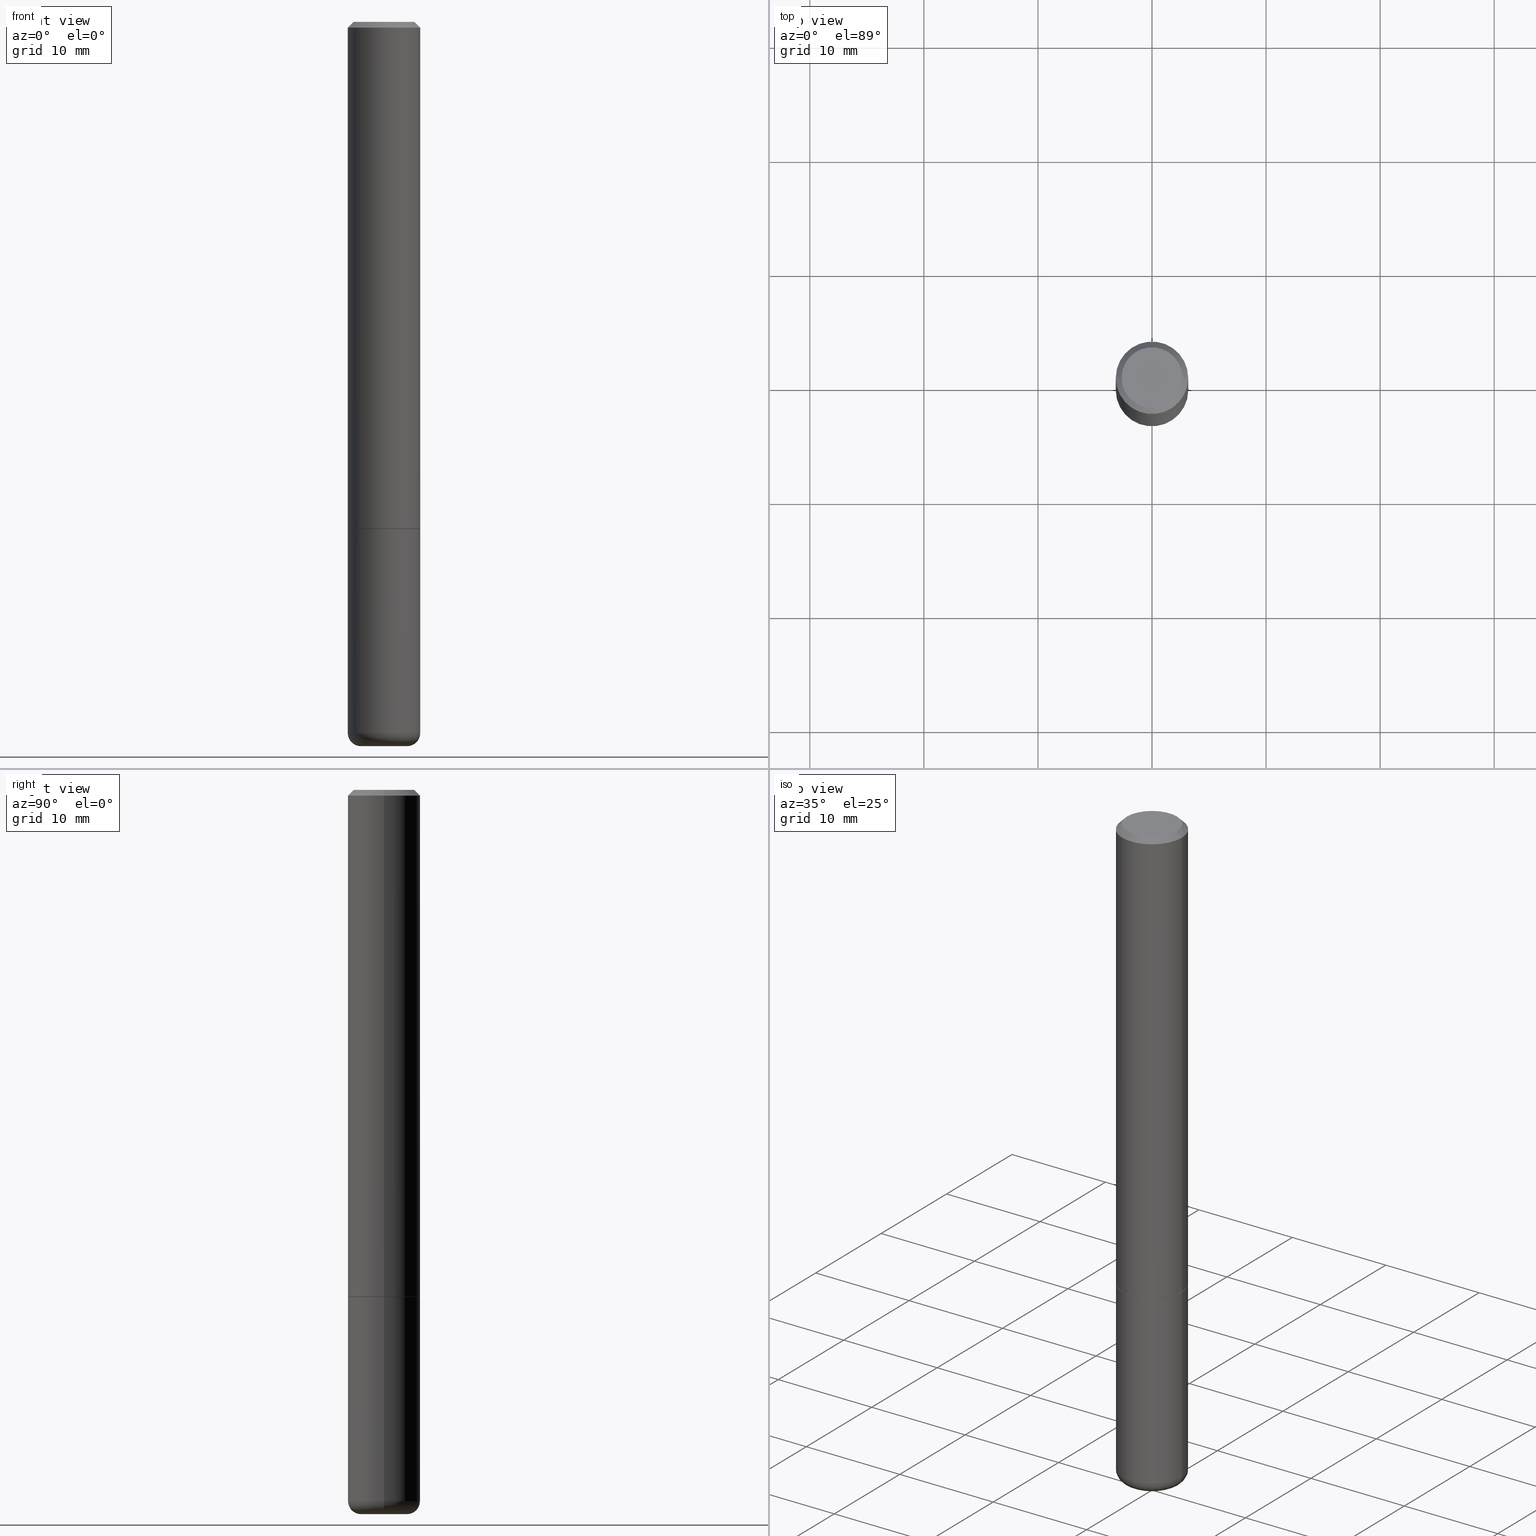
[diagram: canonical four-view strip — front | top / right | iso, engineering-drawing reading convention]
A machine part, canonical four-view strip (front | top / right | iso — engineering-drawing reading convention). The complete STEP part file that produces these views, byte-faithful:
ISO-10303-21;
HEADER;
FILE_DESCRIPTION (( 'STEP AP203' ),
    '1' );
FILE_NAME ('38025.STEP',
    '2023-03-22T20:14:05',
    ( '' ),
    ( '' ),
    'SwSTEP 2.0',
    'SolidWorks 2022',
    '' );
FILE_SCHEMA (( 'CONFIG_CONTROL_DESIGN' ));
ENDSEC;

DATA;
#1 = VERTEX_POINT ( 'NONE', #296 ) ;
#2 = DIRECTION ( 'NONE',  ( 2.445468806185136597E-29, -3.491481338843145583E-15, -1.000000000000000000 ) ) ;
#3 = VERTEX_POINT ( 'NONE', #407 ) ;
#4 = PERSON_AND_ORGANIZATION ( #394, #82 ) ;
#5 = CC_DESIGN_DATE_AND_TIME_ASSIGNMENT ( #27, #203, ( #205 ) ) ;
#6 = EDGE_CURVE ( 'NONE', #318, #110, #44, .T. ) ;
#7 = CARTESIAN_POINT ( 'NONE',  ( 6.113672015462842613E-29, -8.728703347107864943E-15, -2.500000000000000000 ) ) ;
#8 = DIRECTION ( 'NONE',  ( 0.000000000000000000, 0.000000000000000000, 1.000000000000000000 ) ) ;
#9 = ORIENTED_EDGE ( 'NONE', *, *, #138, .F. ) ;
#10 = PERSON_AND_ORGANIZATION ( #394, #82 ) ;
#11 = CIRCLE ( 'NONE', #263, 0.1049999999999998157 ) ;
#12 = DIRECTION ( 'NONE',  ( 1.000000000000000000, -6.982962677686266711E-15, 4.876206205277402437E-29 ) ) ;
#13 = EDGE_CURVE ( 'NONE', #171, #3, #415, .T. ) ;
#14 = DIRECTION ( 'NONE',  ( -0.9986295347545742773, 6.790662755453672411E-15, -0.05233595624293532755 ) ) ;
#15 = LINE ( 'NONE', #109, #239 ) ;
#16 = ORIENTED_EDGE ( 'NONE', *, *, #347, .T. ) ;
#17 = CARTESIAN_POINT ( 'NONE',  ( 6.104286881592932055E-29, -8.713685342262999607E-15, -2.495930804163307926 ) ) ;
#18 = CARTESIAN_POINT ( 'NONE',  ( 0.000000000000000000, 0.000000000000000000, 0.000000000000000000 ) ) ;
#19 = COORDINATED_UNIVERSAL_TIME_OFFSET ( 5, 0, .BEHIND. ) ;
#20 = ORIENTED_EDGE ( 'NONE', *, *, #47, .T. ) ;
#21 = DIRECTION ( 'NONE',  ( 1.000000000000000000, -6.982962677686270655E-15, 4.883557194083114583E-29 ) ) ;
#22 = AXIS2_PLACEMENT_3D ( 'NONE', #144, #77, #107 ) ;
#23 = CARTESIAN_POINT ( 'NONE',  ( 6.003776733534854503E-29, -8.571802009782270255E-15, -2.455061670936044216 ) ) ;
#24 = CALENDAR_DATE ( 2023, 22, 3 ) ;
#25 = CIRCLE ( 'NONE', #346, 0.04499999999999999833 ) ;
#26 = CARTESIAN_POINT ( 'NONE',  ( 4.279570410823989044E-29, -6.110092342975505460E-15, -1.750000000000000222 ) ) ;
#27 = DATE_AND_TIME ( #161, #126 ) ;
#28 = ORIENTED_EDGE ( 'NONE', *, *, #390, .F. ) ;
#29 = ADVANCED_FACE ( 'NONE', ( #374 ), #199, .F. ) ;
#30 = CARTESIAN_POINT ( 'NONE',  ( 1.023820203800856920E-27, -1.461743910558250690E-13, -41.86600954432078936 ) ) ;
#31 = PERSON_AND_ORGANIZATION_ROLE ( 'classification_officer' ) ;
#32 =( GEOMETRIC_REPRESENTATION_CONTEXT ( 3 ) GLOBAL_UNCERTAINTY_ASSIGNED_CONTEXT ( ( #192 ) ) GLOBAL_UNIT_ASSIGNED_CONTEXT ( ( #362, #316, #225 ) ) REPRESENTATION_CONTEXT ( 'NONE', 'WORKASPACE' ) );
#33 = EDGE_LOOP ( 'NONE', ( #131, #145, #86, #133 ) ) ;
#34 = DIRECTION ( 'NONE',  ( 0.9986295347545742773, -7.033825938271993967E-15, -0.05233595624293532755 ) ) ;
#35 = ORIENTED_EDGE ( 'NONE', *, *, #72, .T. ) ;
#36 = AXIS2_PLACEMENT_3D ( 'NONE', #230, #65, #268 ) ;
#37 = AXIS2_PLACEMENT_3D ( 'NONE', #90, #287, #385 ) ;
#38 = CIRCLE ( 'NONE', #37, 0.1049999999999998157 ) ;
#39 = EDGE_CURVE ( 'NONE', #40, #1, #262, .T. ) ;
#40 = VERTEX_POINT ( 'NONE', #63 ) ;
#41 = DATE_AND_TIME ( #334, #46 ) ;
#42 = LINE ( 'NONE', #303, #130 ) ;
#43 = DIRECTION ( 'NONE',  ( -2.445468806185136597E-29, 3.491481338843145583E-15, 1.000000000000000000 ) ) ;
#44 = CIRCLE ( 'NONE', #36, 0.1250000000000000000 ) ;
#45 = CARTESIAN_POINT ( 'NONE',  ( -0.07764488196906783879, -7.930313434334646559E-15, -2.500000000000000000 ) ) ;
#46 = LOCAL_TIME ( 16, 14, 5.000000000000000000, #190 ) ;
#47 = EDGE_CURVE ( 'NONE', #344, #318, #172, .T. ) ;
#48 = CONICAL_SURFACE ( 'NONE', #97, 0.1249999999999997780, 0.7853981633974469467 ) ;
#49 = FACE_OUTER_BOUND ( 'NONE', #295, .T. ) ;
#50 = DIRECTION ( 'NONE',  ( -2.445468806185136597E-29, 3.491481338843145583E-15, 1.000000000000000000 ) ) ;
#51 = DATE_AND_TIME ( #353, #348 ) ;
#52 = ORIENTED_EDGE ( 'NONE', *, *, #310, .F. ) ;
#53 = CARTESIAN_POINT ( 'NONE',  ( 4.890937612370274910E-31, -6.982962677686295307E-17, -0.02000000000000000736 ) ) ;
#54 = ORIENTED_EDGE ( 'NONE', *, *, #6, .T. ) ;
#55 = MECHANICAL_CONTEXT ( 'NONE', #218, 'mechanical' ) ;
#56 = ORIENTED_EDGE ( 'NONE', *, *, #13, .F. ) ;
#57 = CIRCLE ( 'NONE', #314, 0.1250000000000000000 ) ;
#58 = DIRECTION ( 'NONE',  ( -1.000000000000000000, 6.982962677686266711E-15, 0.000000000000000000 ) ) ;
#59 = FACE_OUTER_BOUND ( 'NONE', #94, .T. ) ;
#60 = COORDINATED_UNIVERSAL_TIME_OFFSET ( 5, 0, .BEHIND. ) ;
#61 = ORIENTED_EDGE ( 'NONE', *, *, #305, .F. ) ;
#62 = CARTESIAN_POINT ( 'NONE',  ( 0.1239999999999999991, -6.975979715008602784E-15, -1.750000000000000222 ) ) ;
#63 = CARTESIAN_POINT ( 'NONE',  ( 0.1250000000000000000, -6.979471196347443425E-15, -1.748999999999999888 ) ) ;
#64 = DIRECTION ( 'NONE',  ( -2.445468806185136597E-29, 3.491481338843145583E-15, 1.000000000000000000 ) ) ;
#65 = DIRECTION ( 'NONE',  ( -2.445468806185136597E-29, 3.491481338843145583E-15, 1.000000000000000000 ) ) ;
#66 = DIRECTION ( 'NONE',  ( 7.105427357601001859E-15, 1.000000000000000000, -3.491481338843145583E-15 ) ) ;
#67 = EDGE_CURVE ( 'NONE', #357, #344, #57, .T. ) ;
#68 = PERSON_AND_ORGANIZATION_ROLE ( 'creator' ) ;
#69 = VECTOR ( 'NONE', #269, 39.37007874015748143 ) ;
#70 = SECURITY_CLASSIFICATION_LEVEL ( 'unclassified' ) ;
#71 = DIRECTION ( 'NONE',  ( -1.000000000000000000, 6.982962677686266711E-15, 0.000000000000000000 ) ) ;
#72 = EDGE_CURVE ( 'NONE', #213, #40, #382, .T. ) ;
#73 = CLOSED_SHELL ( 'NONE', ( #276, #141, #369, #264, #327, #81, #340, #351 ) ) ;
#74 = CONICAL_SURFACE ( 'NONE', #178, 0.1249999999999997780, 0.7853981633974469467 ) ;
#75 = EDGE_CURVE ( 'NONE', #313, #132, #42, .T. ) ;
#76 = VERTEX_POINT ( 'NONE', #409 ) ;
#77 = DIRECTION ( 'NONE',  ( -2.445468806185136597E-29, 3.491481338843145583E-15, 1.000000000000000000 ) ) ;
#78 = ORIENTED_EDGE ( 'NONE', *, *, #67, .T. ) ;
#79 = ADVANCED_FACE ( 'NONE', ( #336 ), #91, .F. ) ;
#80 = FACE_OUTER_BOUND ( 'NONE', #408, .T. ) ;
#81 = ADVANCED_FACE ( 'NONE', ( #275 ), #185, .T. ) ;
#82 = ORGANIZATION ( 'UNSPECIFIED', 'UNSPECIFIED', '' ) ;
#83 = DIRECTION ( 'NONE',  ( -2.445468806185136877E-29, 3.491481338843145188E-15, 1.000000000000000000 ) ) ;
#84 = DIRECTION ( 'NONE',  ( 1.000000000000000000, -6.982962677686266711E-15, 4.876176775795935793E-29 ) ) ;
#85 = AXIS2_PLACEMENT_3D ( 'NONE', #99, #206, #345 ) ;
#86 = ORIENTED_EDGE ( 'NONE', *, *, #375, .T. ) ;
#87 = DIRECTION ( 'NONE',  ( 0.7071067811864267805, -2.468850131080992517E-15, 0.7071067811866682540 ) ) ;
#88 = DIRECTION ( 'NONE',  ( 2.445468806185136597E-29, -3.491481338843145583E-15, -1.000000000000000000 ) ) ;
#89 = ADVANCED_BREP_SHAPE_REPRESENTATION ( '38025', ( #258, #105, #399 ), #32 ) ;
#90 = CARTESIAN_POINT ( 'NONE',  ( -1.043851414335219820E-46, 1.490343170380447200E-32, 4.268512490100411279E-18 ) ) ;
#91 = CONICAL_SURFACE ( 'NONE', #177, 751.2258538476899048, 1.518436449235075258 ) ;
#92 = CARTESIAN_POINT ( 'NONE',  ( 0.1250000000000000000, -6.982962677686288010E-15, -1.750000000000000222 ) ) ;
#93 = CYLINDRICAL_SURFACE ( 'NONE', #238, 0.1250000000000000000 ) ;
#94 = EDGE_LOOP ( 'NONE', ( #322, #247, #184, #424 ) ) ;
#95 = ORIENTED_EDGE ( 'NONE', *, *, #301, .F. ) ;
#96 = CIRCLE ( 'NONE', #22, 0.1250000000000000000 ) ;
#97 = AXIS2_PLACEMENT_3D ( 'NONE', #437, #122, #58 ) ;
#98 = DIRECTION ( 'NONE',  ( -2.445468806185136597E-29, 3.491481338843145583E-15, 1.000000000000000000 ) ) ;
#99 = CARTESIAN_POINT ( 'NONE',  ( 4.279570410823989044E-29, -6.110092342975505460E-15, -1.750000000000000222 ) ) ;
#100 = VECTOR ( 'NONE', #14, 39.37007874015748854 ) ;
#101 = AXIS2_PLACEMENT_3D ( 'NONE', #363, #147, #121 ) ;
#102 = LINE ( 'NONE', #228, #433 ) ;
#103 = CC_DESIGN_APPROVAL ( #367, ( #205 ) ) ;
#104 = DIRECTION ( 'NONE',  ( -2.445468806185136597E-29, 3.491481338843145583E-15, 1.000000000000000000 ) ) ;
#105 = MANIFOLD_SOLID_BREP ( 'Body-Move/Copy2[2]', #73 ) ;
#106 = VECTOR ( 'NONE', #332, 39.37007874015748143 ) ;
#107 = DIRECTION ( 'NONE',  ( 1.000000000000000000, -6.982962677686270655E-15, 0.000000000000000000 ) ) ;
#108 = EDGE_CURVE ( 'NONE', #76, #357, #25, .T. ) ;
#109 = CARTESIAN_POINT ( 'NONE',  ( 0.1249999999999997780, -9.273918764983027713E-16, -0.02000000000000000736 ) ) ;
#110 = VERTEX_POINT ( 'NONE', #92 ) ;
#111 = DIRECTION ( 'NONE',  ( -2.445468806185136597E-29, 3.491481338843145583E-15, 1.000000000000000000 ) ) ;
#112 = PERSON_AND_ORGANIZATION ( #394, #82 ) ;
#113 = ORIENTED_EDGE ( 'NONE', *, *, #13, .T. ) ;
#114 = CARTESIAN_POINT ( 'NONE',  ( 0.000000000000000000, 0.000000000000000000, 0.000000000000000000 ) ) ;
#115 = EDGE_CURVE ( 'NONE', #297, #76, #102, .T. ) ;
#116 = ORIENTED_EDGE ( 'NONE', *, *, #273, .F. ) ;
#117 = DIRECTION ( 'NONE',  ( 1.000000000000000000, -6.982962677686266711E-15, 0.000000000000000000 ) ) ;
#118 = ORIENTED_EDGE ( 'NONE', *, *, #412, .T. ) ;
#119 = AXIS2_PLACEMENT_3D ( 'NONE', #300, #66, #417 ) ;
#120 =( LENGTH_UNIT ( ) NAMED_UNIT ( * ) SI_UNIT ( $, .METRE. ) );
#121 = DIRECTION ( 'NONE',  ( 1.000000000000000000, -6.982962677686266711E-15, 4.876176775795935793E-29 ) ) ;
#122 = DIRECTION ( 'NONE',  ( 2.445468806185136597E-29, -3.491481338843145583E-15, -1.000000000000000000 ) ) ;
#123 = EDGE_LOOP ( 'NONE', ( #290, #288, #179, #392 ) ) ;
#124 = CARTESIAN_POINT ( 'NONE',  ( 0.000000000000000000, 0.000000000000000000, 0.000000000000000000 ) ) ;
#125 = PRODUCT_DEFINITION_SHAPE ( 'NONE', 'NONE',  #153 ) ;
#126 = LOCAL_TIME ( 16, 14, 5.000000000000000000, #370 ) ;
#127 = PERSON_AND_ORGANIZATION ( #394, #82 ) ;
#128 = DIRECTION ( 'NONE',  ( -1.000000000000000000, 6.982962677686265922E-15, -4.876176775795935793E-29 ) ) ;
#129 = CARTESIAN_POINT ( 'NONE',  ( 4.279570410823989044E-29, -6.110092342975505460E-15, -1.750000000000000222 ) ) ;
#130 = VECTOR ( 'NONE', #194, 39.37007874015748143 ) ;
#131 = ORIENTED_EDGE ( 'NONE', *, *, #389, .F. ) ;
#132 = VERTEX_POINT ( 'NONE', #160 ) ;
#133 = ORIENTED_EDGE ( 'NONE', *, *, #75, .F. ) ;
#134 = EDGE_CURVE ( 'NONE', #252, #344, #143, .T. ) ;
#135 = AXIS2_PLACEMENT_3D ( 'NONE', #413, #438, #128 ) ;
#136 = CARTESIAN_POINT ( 'NONE',  ( -0.1250000000000000278, -2.200036824506634093E-15, -1.748999999999999888 ) ) ;
#137 = VECTOR ( 'NONE', #279, 39.37007874015748143 ) ;
#138 = EDGE_CURVE ( 'NONE', #76, #252, #271, .T. ) ;
#139 = CC_DESIGN_DATE_AND_TIME_ASSIGNMENT ( #154, #294, ( #153 ) ) ;
#140 = CIRCLE ( 'NONE', #349, 0.1239999999999999991 ) ;
#141 = ADVANCED_FACE ( 'NONE', ( #379 ), #209, .T. ) ;
#142 = LINE ( 'NONE', #244, #372 ) ;
#143 = CIRCLE ( 'NONE', #119, 0.04499999999999999833 ) ;
#144 = CARTESIAN_POINT ( 'NONE',  ( 6.003776733534854503E-29, -8.571802009782270255E-15, -2.455061670936044216 ) ) ;
#145 = ORIENTED_EDGE ( 'NONE', *, *, #310, .T. ) ;
#146 = DIRECTION ( 'NONE',  ( 2.438088387897960049E-29, -3.491481338843145188E-15, -1.000000000000000000 ) ) ;
#147 = DIRECTION ( 'NONE',  ( -2.445468806185136597E-29, 3.491481338843145583E-15, 1.000000000000000000 ) ) ;
#148 = DIRECTION ( 'NONE',  ( 2.445468806185136597E-29, -3.491481338843145583E-15, -1.000000000000000000 ) ) ;
#149 = CARTESIAN_POINT ( 'NONE',  ( -0.1049999999999998157, 7.681258945454877999E-16, 4.268512490095161194E-18 ) ) ;
#150 = EDGE_CURVE ( 'NONE', #252, #76, #309, .T. ) ;
#151 = APPROVAL_DATE_TIME ( #51, #266 ) ;
#152 = EDGE_LOOP ( 'NONE', ( #28, #193, #358 ) ) ;
#153 = PRODUCT_DEFINITION ( 'UNKNOWN', '', #307, #439 ) ;
#154 = DATE_AND_TIME ( #24, #411 ) ;
#155 = DIRECTION ( 'NONE',  ( 1.000000000000000000, -6.982962677686265922E-15, 4.876176775795935793E-29 ) ) ;
#156 = EDGE_LOOP ( 'NONE', ( #167, #430, #9 ) ) ;
#157 = ORIENTED_EDGE ( 'NONE', *, *, #273, .T. ) ;
#158 = CARTESIAN_POINT ( 'NONE',  ( -1.043851414335219820E-46, 1.490343170380447200E-32, 4.268512490100411279E-18 ) ) ;
#159 = FACE_OUTER_BOUND ( 'NONE', #285, .T. ) ;
#160 = CARTESIAN_POINT ( 'NONE',  ( -0.1249999999999997780, 8.030407079339188573E-16, -0.02000000000000000736 ) ) ;
#161 = CALENDAR_DATE ( 2023, 22, 3 ) ;
#162 = EDGE_LOOP ( 'NONE', ( #78, #20, #216, #329 ) ) ;
#163 = CIRCLE ( 'NONE', #418, 0.1249999999999997780 ) ;
#164 = CIRCLE ( 'NONE', #422, 0.1249999999999997780 ) ;
#165 = SHAPE_DEFINITION_REPRESENTATION ( #125, #89 ) ;
#166 = DIRECTION ( 'NONE',  ( 1.000000000000000000, -6.982962677686270655E-15, 0.000000000000000000 ) ) ;
#167 = ORIENTED_EDGE ( 'NONE', *, *, #115, .F. ) ;
#168 = CARTESIAN_POINT ( 'NONE',  ( 0.08000000000000000167, -9.130439023997171907E-15, -2.455061670936044216 ) ) ;
#169 = EDGE_LOOP ( 'NONE', ( #52, #240, #245, #306 ) ) ;
#170 = CONICAL_SURFACE ( 'NONE', #333, 0.1239999999999999991, 0.7853981633972775267 ) ;
#171 = VERTEX_POINT ( 'NONE', #254 ) ;
#172 = LINE ( 'NONE', #235, #69 ) ;
#173 = CIRCLE ( 'NONE', #85, 0.1250000000000000000 ) ;
#174 = PLANE ( 'NONE',  #234 ) ;
#175 = PRODUCT ( '38025', '38025', '', ( #55 ) ) ;
#176 = APPLICATION_CONTEXT ( 'configuration controlled 3d designs of mechanical parts and assemblies' ) ;
#177 = AXIS2_PLACEMENT_3D ( 'NONE', #231, #2, #71 ) ;
#178 = AXIS2_PLACEMENT_3D ( 'NONE', #330, #148, #359 ) ;
#179 = ORIENTED_EDGE ( 'NONE', *, *, #108, .T. ) ;
#180 = CC_DESIGN_PERSON_AND_ORGANIZATION_ASSIGNMENT ( #321, #292, ( #153 ) ) ;
#181 = DIRECTION ( 'NONE',  ( 1.000000000000000000, 0.000000000000000000, 0.000000000000000000 ) ) ;
#182 = CC_DESIGN_APPROVAL ( #266, ( #153 ) ) ;
#183 = APPROVAL_STATUS ( 'not_yet_approved' ) ;
#184 = ORIENTED_EDGE ( 'NONE', *, *, #67, .F. ) ;
#185 = CONICAL_SURFACE ( 'NONE', #233, 0.1239999999999999991, 0.7853981633972775267 ) ;
#186 = TOROIDAL_SURFACE ( 'NONE', #405, 0.08000000000000000167, 0.04499999999999999140 ) ;
#187 = APPROVAL_DATE_TIME ( #41, #367 ) ;
#188 = FACE_OUTER_BOUND ( 'NONE', #260, .T. ) ;
#189 = ORIENTED_EDGE ( 'NONE', *, *, #72, .F. ) ;
#190 = COORDINATED_UNIVERSAL_TIME_OFFSET ( 5, 0, .BEHIND. ) ;
#191 = DIRECTION ( 'NONE',  ( -2.445468806185136597E-29, 3.491481338843145583E-15, 1.000000000000000000 ) ) ;
#192 = UNCERTAINTY_MEASURE_WITH_UNIT (LENGTH_MEASURE( 1.000000000000000082E-05 ), #362, 'distance_accuracy_value', 'NONE');
#193 = ORIENTED_EDGE ( 'NONE', *, *, #115, .T. ) ;
#194 = DIRECTION ( 'NONE',  ( -0.7071067811865465735, 2.468850131082246805E-15, -0.7071067811865484609 ) ) ;
#195 = DIRECTION ( 'NONE',  ( 1.000000000000000000, -6.982962677686266711E-15, 4.876176775795935793E-29 ) ) ;
#196 = DATE_AND_TIME ( #410, #278 ) ;
#197 = DIRECTION ( 'NONE',  ( -2.445468806185136877E-29, 3.491481338843145188E-15, 1.000000000000000000 ) ) ;
#198 = PERSON_AND_ORGANIZATION ( #394, #82 ) ;
#199 = PLANE ( 'NONE',  #135 ) ;
#200 = ADVANCED_FACE ( 'NONE', ( #226 ), #442, .F. ) ;
#201 = DIRECTION ( 'NONE',  ( -2.445468806185136597E-29, 3.491481338843145583E-15, 1.000000000000000000 ) ) ;
#202 = CARTESIAN_POINT ( 'NONE',  ( 4.890937612370274910E-31, -6.982962677686295307E-17, -0.02000000000000000736 ) ) ;
#203 = DATE_TIME_ROLE ( 'classification_date' ) ;
#204 = DIRECTION ( 'NONE',  ( -6.982962677686266711E-15, -1.000000000000000000, 3.491481338843145583E-15 ) ) ;
#205 = SECURITY_CLASSIFICATION ( '', '', #70 ) ;
#206 = DIRECTION ( 'NONE',  ( -2.445468806185136597E-29, 3.491481338843145583E-15, 1.000000000000000000 ) ) ;
#207 = AXIS2_PLACEMENT_3D ( 'NONE', #30, #88, #365 ) ;
#208 = ADVANCED_FACE ( 'NONE', ( #59 ), #355, .T. ) ;
#209 = CYLINDRICAL_SURFACE ( 'NONE', #373, 0.1249999999999999029 ) ;
#210 = CC_DESIGN_SECURITY_CLASSIFICATION ( #205, ( #307 ) ) ;
#211 = ADVANCED_FACE ( 'NONE', ( #159 ), #93, .T. ) ;
#212 = DIRECTION ( 'NONE',  ( 1.000000000000000000, -6.982962677686266711E-15, 4.876176775795935793E-29 ) ) ;
#213 = VERTEX_POINT ( 'NONE', #136 ) ;
#214 = CYLINDRICAL_SURFACE ( 'NONE', #434, 0.1250000000000000000 ) ;
#215 = CARTESIAN_POINT ( 'NONE',  ( 7.332110811570567424E-16, 0.1049999999999998157, -3.644712843334794891E-16 ) ) ;
#216 = ORIENTED_EDGE ( 'NONE', *, *, #243, .F. ) ;
#217 = CLOSED_SHELL ( 'NONE', ( #79, #208, #277, #29, #211, #302, #200 ) ) ;
#218 = APPLICATION_CONTEXT ( 'configuration controlled 3d designs of mechanical parts and assemblies' ) ;
#219 = DIRECTION ( 'NONE',  ( 1.000000000000000000, -6.982962677686262766E-15, 0.000000000000000000 ) ) ;
#220 = ORIENTED_EDGE ( 'NONE', *, *, #384, .T. ) ;
#221 = CARTESIAN_POINT ( 'NONE',  ( 0.1250000000000000000, -8.728703347107833388E-16, 6.095220969744919741E-30 ) ) ;
#222 = ORIENTED_EDGE ( 'NONE', *, *, #39, .T. ) ;
#223 = CARTESIAN_POINT ( 'NONE',  ( -0.1239999999999999991, -5.229019350632981236E-15, -1.750000000000000222 ) ) ;
#224 = EDGE_CURVE ( 'NONE', #132, #1, #163, .T. ) ;
#225 =( NAMED_UNIT ( * ) SI_UNIT ( $, .STERADIAN. ) SOLID_ANGLE_UNIT ( ) );
#226 = FACE_OUTER_BOUND ( 'NONE', #156, .T. ) ;
#227 = AXIS2_PLACEMENT_3D ( 'NONE', #397, #98, #219 ) ;
#228 = CARTESIAN_POINT ( 'NONE',  ( 8.104835170173375943E-19, -8.714495825779956901E-15, -2.495930804163307926 ) ) ;
#229 = APPROVAL_PERSON_ORGANIZATION ( #435, #232, #398 ) ;
#230 = CARTESIAN_POINT ( 'NONE',  ( 4.279570410823989044E-29, -6.110092342975505460E-15, -1.750000000000000222 ) ) ;
#231 = CARTESIAN_POINT ( 'NONE',  ( 1.023820203800856920E-27, -1.461743910558250690E-13, -41.86600954432078936 ) ) ;
#232 = APPROVAL ( #259, 'UNSPECIFIED' ) ;
#233 = AXIS2_PLACEMENT_3D ( 'NONE', #414, #339, #166 ) ;
#234 = AXIS2_PLACEMENT_3D ( 'NONE', #215, #146, #354 ) ;
#235 = CARTESIAN_POINT ( 'NONE',  ( -0.1250000000000000000, 8.881784197001252323E-16, -6.148668862818632227E-30 ) ) ;
#236 = APPROVAL_STATUS ( 'not_yet_approved' ) ;
#237 = ORIENTED_EDGE ( 'NONE', *, *, #403, .F. ) ;
#238 = AXIS2_PLACEMENT_3D ( 'NONE', #368, #64, #195 ) ;
#239 = VECTOR ( 'NONE', #356, 39.37007874015748143 ) ;
#240 = ORIENTED_EDGE ( 'NONE', *, *, #347, .F. ) ;
#241 = ORIENTED_EDGE ( 'NONE', *, *, #403, .T. ) ;
#242 = FACE_OUTER_BOUND ( 'NONE', #169, .T. ) ;
#243 = EDGE_CURVE ( 'NONE', #110, #318, #173, .T. ) ;
#244 = CARTESIAN_POINT ( 'NONE',  ( -0.1249999999999999029, 8.881784197001245421E-16, -6.148668862818627323E-30 ) ) ;
#245 = ORIENTED_EDGE ( 'NONE', *, *, #75, .T. ) ;
#246 = DIRECTION ( 'NONE',  ( 1.000000000000000000, -6.982962677686268288E-15, 0.000000000000000000 ) ) ;
#247 = ORIENTED_EDGE ( 'NONE', *, *, #134, .T. ) ;
#248 = PRODUCT_RELATED_PRODUCT_CATEGORY ( 'detail', '', ( #175 ) ) ;
#249 = ORIENTED_EDGE ( 'NONE', *, *, #389, .T. ) ;
#250 = DIRECTION ( 'NONE',  ( -2.445468806185136597E-29, 3.491481338843145583E-15, 1.000000000000000000 ) ) ;
#251 = CARTESIAN_POINT ( 'NONE',  ( -8.104835168952630063E-19, -8.714495825779956901E-15, -2.495930804163307926 ) ) ;
#252 = VERTEX_POINT ( 'NONE', #45 ) ;
#253 = ORIENTED_EDGE ( 'NONE', *, *, #39, .F. ) ;
#254 = CARTESIAN_POINT ( 'NONE',  ( 0.1239999999999999991, -6.975979715008602784E-15, -1.750000000000000222 ) ) ;
#255 = APPLICATION_PROTOCOL_DEFINITION ( 'international standard', 'config_control_design', 1994, #218 ) ;
#256 = EDGE_LOOP ( 'NONE', ( #113, #324, #427, #95 ) ) ;
#257 = DIRECTION ( 'NONE',  ( -2.445468806185136597E-29, 3.491481338843145583E-15, 1.000000000000000000 ) ) ;
#258 = MANIFOLD_SOLID_BREP ( 'Body-Move/Copy2[1]', #217 ) ;
#259 = APPROVAL_STATUS ( 'not_yet_approved' ) ;
#260 = EDGE_LOOP ( 'NONE', ( #56, #116 ) ) ;
#261 = PERSON_AND_ORGANIZATION_ROLE ( 'design_supplier' ) ;
#262 = LINE ( 'NONE', #401, #378 ) ;
#263 = AXIS2_PLACEMENT_3D ( 'NONE', #158, #319, #12 ) ;
#264 = ADVANCED_FACE ( 'NONE', ( #242 ), #48, .T. ) ;
#265 = DIRECTION ( 'NONE',  ( 1.000000000000000000, -6.982962677686270655E-15, 0.000000000000000000 ) ) ;
#266 = APPROVAL ( #183, 'UNSPECIFIED' ) ;
#267 = CARTESIAN_POINT ( 'NONE',  ( 4.277124942017804002E-29, -6.106600861636660875E-15, -1.748999999999999888 ) ) ;
#268 = DIRECTION ( 'NONE',  ( 1.000000000000000000, -6.982962677686262766E-15, 0.000000000000000000 ) ) ;
#269 = DIRECTION ( 'NONE',  ( -2.445468806185136877E-29, 3.491481338843145188E-15, 1.000000000000000000 ) ) ;
#270 = ORIENTED_EDGE ( 'NONE', *, *, #421, .T. ) ;
#271 = CIRCLE ( 'NONE', #402, 0.07764488196906783879 ) ;
#272 = DIRECTION ( 'NONE',  ( -2.445468806185136597E-29, 3.491481338843145583E-15, 1.000000000000000000 ) ) ;
#273 = EDGE_CURVE ( 'NONE', #3, #171, #140, .T. ) ;
#274 = APPROVAL_PERSON_ORGANIZATION ( #112, #266, #387 ) ;
#275 = FACE_OUTER_BOUND ( 'NONE', #341, .T. ) ;
#276 = ADVANCED_FACE ( 'NONE', ( #298 ), #170, .T. ) ;
#277 = ADVANCED_FACE ( 'NONE', ( #386 ), #214, .T. ) ;
#278 = LOCAL_TIME ( 16, 14, 5.000000000000000000, #60 ) ;
#279 = DIRECTION ( 'NONE',  ( -2.445468806185136877E-29, 3.491481338843145188E-15, 1.000000000000000000 ) ) ;
#280 = AXIS2_PLACEMENT_3D ( 'NONE', #441, #191, #265 ) ;
#281 = CARTESIAN_POINT ( 'NONE',  ( 6.003776733534854503E-29, -8.571802009782270255E-15, -2.455061670936044216 ) ) ;
#282 = PERSON_AND_ORGANIZATION_ROLE ( 'design_owner' ) ;
#283 = CARTESIAN_POINT ( 'NONE',  ( 0.1250000000000000000, -9.444672344493053593E-15, -2.455061670936044216 ) ) ;
#284 = PLANE ( 'NONE',  #366 ) ;
#285 = EDGE_LOOP ( 'NONE', ( #312, #118, #270, #391 ) ) ;
#286 = DIRECTION ( 'NONE',  ( 1.000000000000000000, -6.982962677686270655E-15, 0.000000000000000000 ) ) ;
#287 = DIRECTION ( 'NONE',  ( -2.445468806185136597E-29, 3.491481338843145583E-15, 1.000000000000000000 ) ) ;
#288 = ORIENTED_EDGE ( 'NONE', *, *, #150, .T. ) ;
#289 = CYLINDRICAL_SURFACE ( 'NONE', #101, 0.1249999999999999029 ) ;
#290 = ORIENTED_EDGE ( 'NONE', *, *, #134, .F. ) ;
#291 = CARTESIAN_POINT ( 'NONE',  ( 4.279570410823989044E-29, -6.110092342975505460E-15, -1.750000000000000222 ) ) ;
#292 = PERSON_AND_ORGANIZATION_ROLE ( 'creator' ) ;
#293 = ORIENTED_EDGE ( 'NONE', *, *, #243, .T. ) ;
#294 = DATE_TIME_ROLE ( 'creation_date' ) ;
#295 = EDGE_LOOP ( 'NONE', ( #16, #249 ) ) ;
#296 = CARTESIAN_POINT ( 'NONE',  ( 0.1249999999999997780, -9.273918764983027713E-16, -0.02000000000000000736 ) ) ;
#297 = VERTEX_POINT ( 'NONE', #17 ) ;
#298 = FACE_OUTER_BOUND ( 'NONE', #256, .T. ) ;
#299 = DIRECTION ( 'NONE',  ( -2.445468806185136597E-29, 3.491481338843145583E-15, 1.000000000000000000 ) ) ;
#300 = CARTESIAN_POINT ( 'NONE',  ( -0.08000000000000000167, -8.003367821174189601E-15, -2.455061670936044216 ) ) ;
#301 = EDGE_CURVE ( 'NONE', #171, #40, #393, .T. ) ;
#302 = ADVANCED_FACE ( 'NONE', ( #388 ), #186, .T. ) ;
#303 = CARTESIAN_POINT ( 'NONE',  ( -0.1249999999999997780, 8.030407079339188573E-16, -0.02000000000000000736 ) ) ;
#304 = ORIENTED_EDGE ( 'NONE', *, *, #301, .T. ) ;
#305 = EDGE_CURVE ( 'NONE', #3, #213, #400, .T. ) ;
#306 = ORIENTED_EDGE ( 'NONE', *, *, #224, .T. ) ;
#307 = PRODUCT_DEFINITION_FORMATION_WITH_SPECIFIED_SOURCE ( 'ANY', '', #175, .NOT_KNOWN. ) ;
#308 = APPROVAL_DATE_TIME ( #196, #232 ) ;
#309 = CIRCLE ( 'NONE', #338, 0.07764488196906783879 ) ;
#310 = EDGE_CURVE ( 'NONE', #396, #1, #15, .T. ) ;
#311 = DIRECTION ( 'NONE',  ( 1.000000000000000000, -6.982962677686268288E-15, 0.000000000000000000 ) ) ;
#312 = ORIENTED_EDGE ( 'NONE', *, *, #47, .F. ) ;
#313 = VERTEX_POINT ( 'NONE', #149 ) ;
#314 = AXIS2_PLACEMENT_3D ( 'NONE', #371, #201, #404 ) ;
#315 = ORIENTED_EDGE ( 'NONE', *, *, #375, .F. ) ;
#316 =( NAMED_UNIT ( * ) PLANE_ANGLE_UNIT ( ) SI_UNIT ( $, .RADIAN. ) );
#317 = ORIENTED_EDGE ( 'NONE', *, *, #224, .F. ) ;
#318 = VERTEX_POINT ( 'NONE', #361 ) ;
#319 = DIRECTION ( 'NONE',  ( -2.445468806185136597E-29, 3.491481338843145583E-15, 1.000000000000000000 ) ) ;
#320 = AXIS2_PLACEMENT_3D ( 'NONE', #267, #376, #337 ) ;
#321 = PERSON_AND_ORGANIZATION ( #394, #82 ) ;
#322 = ORIENTED_EDGE ( 'NONE', *, *, #138, .T. ) ;
#323 = DIRECTION ( 'NONE',  ( -2.445468806185136597E-29, 3.491481338843145583E-15, 1.000000000000000000 ) ) ;
#324 = ORIENTED_EDGE ( 'NONE', *, *, #305, .T. ) ;
#325 = EDGE_LOOP ( 'NONE', ( #293, #54 ) ) ;
#326 = DIRECTION ( 'NONE',  ( -2.445468806185136597E-29, 3.491481338843145583E-15, 1.000000000000000000 ) ) ;
#327 = ADVANCED_FACE ( 'NONE', ( #80 ), #289, .T. ) ;
#328 = COORDINATED_UNIVERSAL_TIME_OFFSET ( 5, 0, .BEHIND. ) ;
#329 = ORIENTED_EDGE ( 'NONE', *, *, #421, .F. ) ;
#330 = CARTESIAN_POINT ( 'NONE',  ( 4.890937612370274910E-31, -6.982962677686295307E-17, -0.02000000000000000736 ) ) ;
#331 = CC_DESIGN_PERSON_AND_ORGANIZATION_ASSIGNMENT ( #10, #282, ( #175 ) ) ;
#332 = DIRECTION ( 'NONE',  ( -0.7071067811864267805, 7.493145998869918709E-15, 0.7071067811866682540 ) ) ;
#333 = AXIS2_PLACEMENT_3D ( 'NONE', #129, #50, #428 ) ;
#334 = CALENDAR_DATE ( 2023, 22, 3 ) ;
#335 = CC_DESIGN_APPROVAL ( #232, ( #307 ) ) ;
#336 = FACE_OUTER_BOUND ( 'NONE', #152, .T. ) ;
#337 = DIRECTION ( 'NONE',  ( 1.000000000000000000, -6.982962677686262766E-15, 0.000000000000000000 ) ) ;
#338 = AXIS2_PLACEMENT_3D ( 'NONE', #7, #111, #246 ) ;
#339 = DIRECTION ( 'NONE',  ( -2.445468806185136597E-29, 3.491481338843145583E-15, 1.000000000000000000 ) ) ;
#340 = ADVANCED_FACE ( 'NONE', ( #188 ), #284, .F. ) ;
#341 = EDGE_LOOP ( 'NONE', ( #61, #157, #304, #189 ) ) ;
#342 = APPROVAL_ROLE ( '' ) ;
#343 = CARTESIAN_POINT ( 'NONE',  ( 6.113672015462842613E-29, -8.728703347107864943E-15, -2.500000000000000000 ) ) ;
#344 = VERTEX_POINT ( 'NONE', #436 ) ;
#345 = DIRECTION ( 'NONE',  ( 1.000000000000000000, -6.982962677686262766E-15, 0.000000000000000000 ) ) ;
#346 = AXIS2_PLACEMENT_3D ( 'NONE', #168, #204, #420 ) ;
#347 = EDGE_CURVE ( 'NONE', #313, #396, #11, .T. ) ;
#348 = LOCAL_TIME ( 16, 14, 5.000000000000000000, #19 ) ;
#349 = AXIS2_PLACEMENT_3D ( 'NONE', #291, #257, #286 ) ;
#350 = DIMENSIONAL_EXPONENTS ( 1.000000000000000000, 0.000000000000000000, 0.000000000000000000, 0.000000000000000000, 0.000000000000000000, 0.000000000000000000, 0.000000000000000000 ) ;
#351 = ADVANCED_FACE ( 'NONE', ( #49 ), #174, .F. ) ;
#352 = LENGTH_MEASURE_WITH_UNIT ( LENGTH_MEASURE( 0.02539999999999999897 ), #120 );
#353 = CALENDAR_DATE ( 2023, 22, 3 ) ;
#354 = DIRECTION ( 'NONE',  ( -1.000000000000000000, 6.982962677686265922E-15, -4.876176775795935793E-29 ) ) ;
#355 = TOROIDAL_SURFACE ( 'NONE', #364, 0.08000000000000000167, 0.04499999999999999140 ) ;
#356 = DIRECTION ( 'NONE',  ( 0.7071067811865465735, -7.319954787623252890E-15, -0.7071067811865484609 ) ) ;
#357 = VERTEX_POINT ( 'NONE', #283 ) ;
#358 = ORIENTED_EDGE ( 'NONE', *, *, #150, .F. ) ;
#359 = DIRECTION ( 'NONE',  ( -1.000000000000000000, 6.982962677686266711E-15, 0.000000000000000000 ) ) ;
#360 = CARTESIAN_POINT ( 'NONE',  ( 0.1049999999999998157, -8.238720831321562839E-16, 4.268512490105855498E-18 ) ) ;
#361 = CARTESIAN_POINT ( 'NONE',  ( -0.1250000000000000000, -6.452768756678761836E-15, -1.750000000000000222 ) ) ;
#362 =( CONVERSION_BASED_UNIT ( 'INCH', #352 ) LENGTH_UNIT ( ) NAMED_UNIT ( #350 ) );
#363 = CARTESIAN_POINT ( 'NONE',  ( 0.000000000000000000, 0.000000000000000000, 0.000000000000000000 ) ) ;
#364 = AXIS2_PLACEMENT_3D ( 'NONE', #23, #299, #440 ) ;
#365 = DIRECTION ( 'NONE',  ( -1.000000000000000000, 6.982962677686266711E-15, 0.000000000000000000 ) ) ;
#366 = AXIS2_PLACEMENT_3D ( 'NONE', #26, #426, #155 ) ;
#367 = APPROVAL ( #236, 'UNSPECIFIED' ) ;
#368 = CARTESIAN_POINT ( 'NONE',  ( 0.000000000000000000, 0.000000000000000000, 0.000000000000000000 ) ) ;
#369 = ADVANCED_FACE ( 'NONE', ( #425 ), #74, .T. ) ;
#370 = COORDINATED_UNIVERSAL_TIME_OFFSET ( 5, 0, .BEHIND. ) ;
#371 = CARTESIAN_POINT ( 'NONE',  ( 6.003776733534854503E-29, -8.571802009782270255E-15, -2.455061670936044216 ) ) ;
#372 = VECTOR ( 'NONE', #83, 39.37007874015748143 ) ;
#373 = AXIS2_PLACEMENT_3D ( 'NONE', #18, #104, #212 ) ;
#374 = FACE_OUTER_BOUND ( 'NONE', #325, .T. ) ;
#375 = EDGE_CURVE ( 'NONE', #1, #132, #164, .T. ) ;
#376 = DIRECTION ( 'NONE',  ( -2.445468806185136597E-29, 3.491481338843145583E-15, 1.000000000000000000 ) ) ;
#377 = CC_DESIGN_PERSON_AND_ORGANIZATION_ASSIGNMENT ( #127, #68, ( #307 ) ) ;
#378 = VECTOR ( 'NONE', #197, 39.37007874015748143 ) ;
#379 = FACE_OUTER_BOUND ( 'NONE', #432, .T. ) ;
#380 = CC_DESIGN_PERSON_AND_ORGANIZATION_ASSIGNMENT ( #406, #31, ( #205 ) ) ;
#381 = APPROVAL_PERSON_ORGANIZATION ( #198, #367, #342 ) ;
#382 = CIRCLE ( 'NONE', #320, 0.1250000000000000000 ) ;
#383 = VECTOR ( 'NONE', #87, 39.37007874015748143 ) ;
#384 = EDGE_CURVE ( 'NONE', #40, #213, #419, .T. ) ;
#385 = DIRECTION ( 'NONE',  ( 1.000000000000000000, -6.982962677686266711E-15, 4.876206205277402437E-29 ) ) ;
#386 = FACE_OUTER_BOUND ( 'NONE', #162, .T. ) ;
#387 = APPROVAL_ROLE ( '' ) ;
#388 = FACE_OUTER_BOUND ( 'NONE', #123, .T. ) ;
#389 = EDGE_CURVE ( 'NONE', #396, #313, #38, .T. ) ;
#390 = EDGE_CURVE ( 'NONE', #297, #252, #395, .T. ) ;
#391 = ORIENTED_EDGE ( 'NONE', *, *, #6, .F. ) ;
#392 = ORIENTED_EDGE ( 'NONE', *, *, #412, .F. ) ;
#393 = LINE ( 'NONE', #62, #383 ) ;
#394 = PERSON ( 'UNSPECIFIED', 'UNSPECIFIED', 'UNSPECIFIED', ('UNSPECIFIED'), ('UNSPECIFIED'), ('UNSPECIFIED') ) ;
#395 = LINE ( 'NONE', #251, #100 ) ;
#396 = VERTEX_POINT ( 'NONE', #360 ) ;
#397 = CARTESIAN_POINT ( 'NONE',  ( 4.277124942017804002E-29, -6.106600861636660875E-15, -1.748999999999999888 ) ) ;
#398 = APPROVAL_ROLE ( '' ) ;
#399 = AXIS2_PLACEMENT_3D ( 'NONE', #124, #8, #181 ) ;
#400 = LINE ( 'NONE', #223, #106 ) ;
#401 = CARTESIAN_POINT ( 'NONE',  ( 0.1249999999999999029, -8.728703347107826486E-16, 6.095220969744914837E-30 ) ) ;
#402 = AXIS2_PLACEMENT_3D ( 'NONE', #343, #43, #311 ) ;
#403 = EDGE_CURVE ( 'NONE', #213, #132, #142, .T. ) ;
#404 = DIRECTION ( 'NONE',  ( 1.000000000000000000, -6.982962677686270655E-15, 0.000000000000000000 ) ) ;
#405 = AXIS2_PLACEMENT_3D ( 'NONE', #281, #323, #21 ) ;
#406 = PERSON_AND_ORGANIZATION ( #394, #82 ) ;
#407 = CARTESIAN_POINT ( 'NONE',  ( -0.1239999999999999991, -5.223720896284758045E-15, -1.750000000000000222 ) ) ;
#408 = EDGE_LOOP ( 'NONE', ( #237, #35, #222, #317 ) ) ;
#409 = CARTESIAN_POINT ( 'NONE',  ( 0.07764488196906783879, -9.270894660011220174E-15, -2.500000000000000000 ) ) ;
#410 = CALENDAR_DATE ( 2023, 22, 3 ) ;
#411 = LOCAL_TIME ( 16, 14, 5.000000000000000000, #328 ) ;
#412 = EDGE_CURVE ( 'NONE', #344, #357, #96, .T. ) ;
#413 = CARTESIAN_POINT ( 'NONE',  ( 8.728703347108260359E-16, 0.1249999999999938799, -1.750000000000000666 ) ) ;
#414 = CARTESIAN_POINT ( 'NONE',  ( 4.279570410823989044E-29, -6.110092342975505460E-15, -1.750000000000000222 ) ) ;
#415 = CIRCLE ( 'NONE', #280, 0.1239999999999999991 ) ;
#416 = DIRECTION ( 'NONE',  ( 1.000000000000000000, -6.982962677686266711E-15, 0.000000000000000000 ) ) ;
#417 = DIRECTION ( 'NONE',  ( -1.000000000000000000, 7.105427357600990815E-15, 0.000000000000000000 ) ) ;
#418 = AXIS2_PLACEMENT_3D ( 'NONE', #202, #272, #416 ) ;
#419 = CIRCLE ( 'NONE', #227, 0.1250000000000000000 ) ;
#420 = DIRECTION ( 'NONE',  ( 1.000000000000000000, -6.982962677686269077E-15, 0.000000000000000000 ) ) ;
#421 = EDGE_CURVE ( 'NONE', #357, #110, #429, .T. ) ;
#422 = AXIS2_PLACEMENT_3D ( 'NONE', #53, #326, #117 ) ;
#423 = APPLICATION_PROTOCOL_DEFINITION ( 'international standard', 'config_control_design', 1994, #176 ) ;
#424 = ORIENTED_EDGE ( 'NONE', *, *, #108, .F. ) ;
#425 = FACE_OUTER_BOUND ( 'NONE', #33, .T. ) ;
#426 = DIRECTION ( 'NONE',  ( -2.438088387897960049E-29, 3.491481338843145188E-15, 1.000000000000000000 ) ) ;
#427 = ORIENTED_EDGE ( 'NONE', *, *, #384, .F. ) ;
#428 = DIRECTION ( 'NONE',  ( 1.000000000000000000, -6.982962677686270655E-15, 0.000000000000000000 ) ) ;
#429 = LINE ( 'NONE', #221, #137 ) ;
#430 = ORIENTED_EDGE ( 'NONE', *, *, #390, .T. ) ;
#431 = CC_DESIGN_PERSON_AND_ORGANIZATION_ASSIGNMENT ( #4, #261, ( #307 ) ) ;
#432 = EDGE_LOOP ( 'NONE', ( #220, #241, #315, #253 ) ) ;
#433 = VECTOR ( 'NONE', #34, 39.37007874015748854 ) ;
#434 = AXIS2_PLACEMENT_3D ( 'NONE', #114, #250, #84 ) ;
#435 = PERSON_AND_ORGANIZATION ( #394, #82 ) ;
#436 = CARTESIAN_POINT ( 'NONE',  ( -0.1250000000000000000, -6.452768756678761836E-15, -2.455061670936044216 ) ) ;
#437 = CARTESIAN_POINT ( 'NONE',  ( 4.890937612370274910E-31, -6.982962677686295307E-17, -0.02000000000000000736 ) ) ;
#438 = DIRECTION ( 'NONE',  ( 2.438088387897960049E-29, -3.491481338843145188E-15, -1.000000000000000000 ) ) ;
#439 = DESIGN_CONTEXT ( 'detailed design', #176, 'design' ) ;
#440 = DIRECTION ( 'NONE',  ( 1.000000000000000000, -6.982962677686270655E-15, 4.883557194083114583E-29 ) ) ;
#441 = CARTESIAN_POINT ( 'NONE',  ( 4.279570410823989044E-29, -6.110092342975505460E-15, -1.750000000000000222 ) ) ;
#442 = CONICAL_SURFACE ( 'NONE', #207, 751.2258538476899048, 1.518436449235075258 ) ;
ENDSEC;
END-ISO-10303-21;
